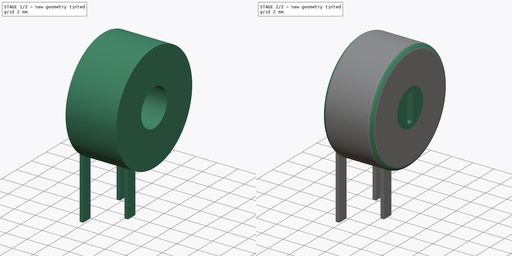
[diagram: build sequence overview — one tinted view per stage of 2, left to right]
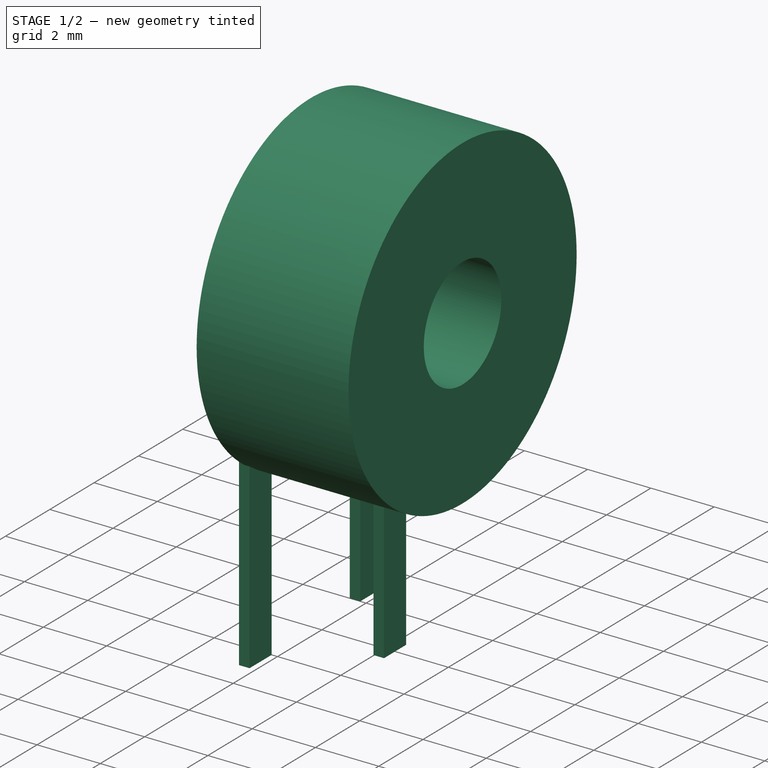
[diagram: stage 1 of 2 — iso view after this stage's code; geometry added in this stage tinted green]
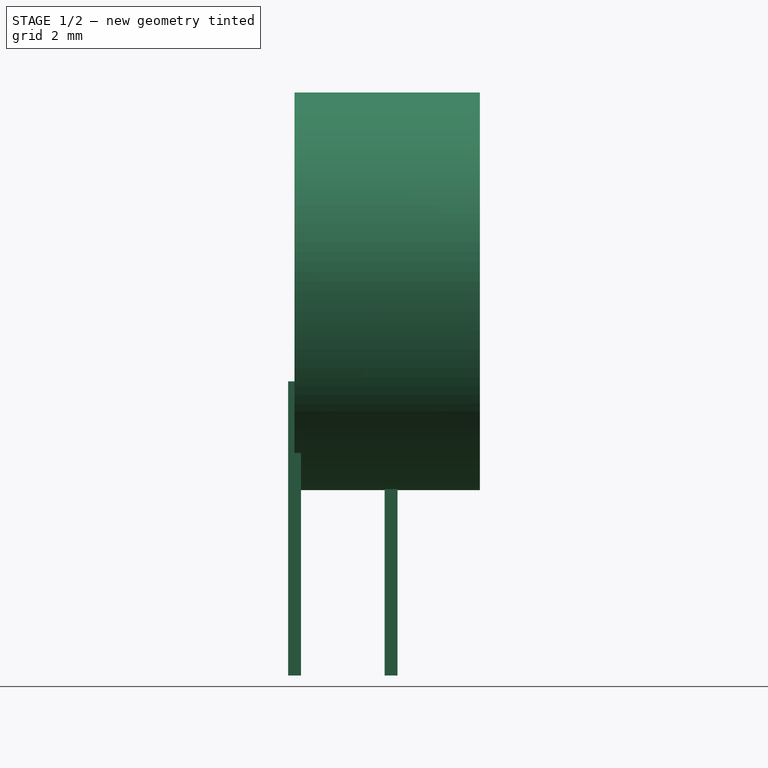
[diagram: stage 1 of 2 — front view after this stage's code; geometry added in this stage tinted green]
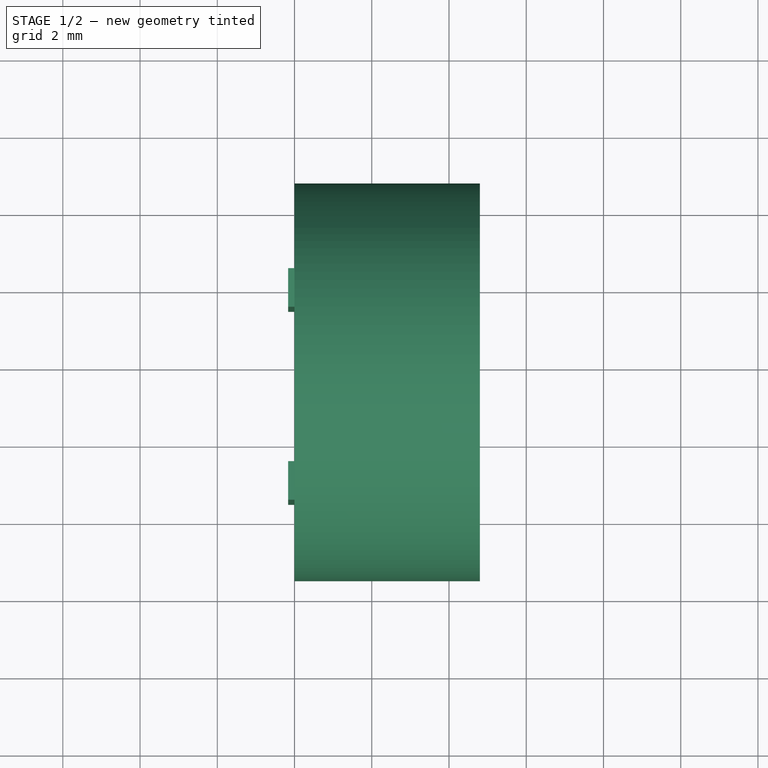
[diagram: stage 1 of 2 — top view after this stage's code; geometry added in this stage tinted green]
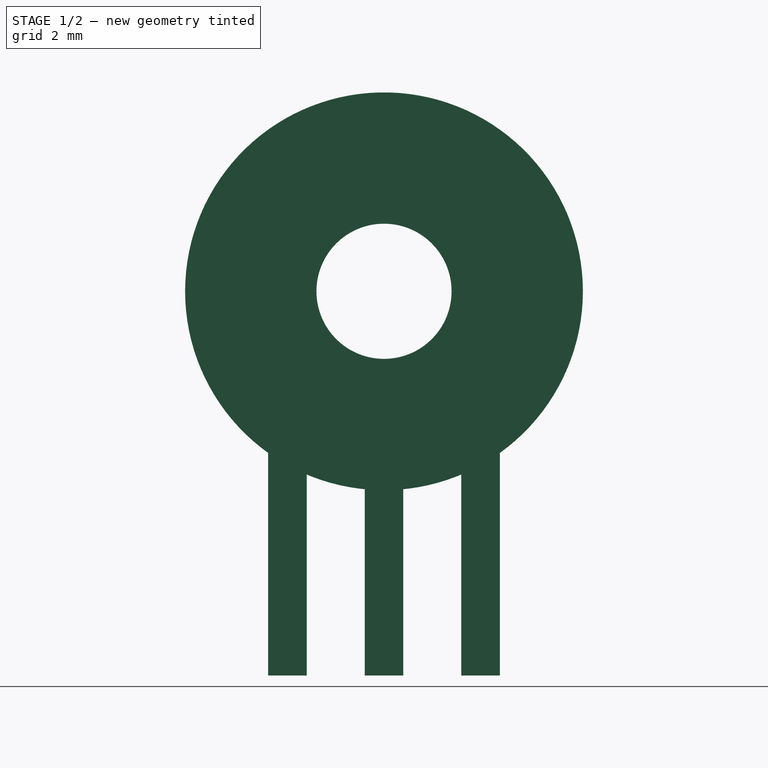
[diagram: stage 1 of 2 — right view after this stage's code; geometry added in this stage tinted green]
FCSTD DOCUMENT  (FreeCAD 0.16R6703 (Git))
Label: Potentiometer_Trimmer_Piher_PT-10h2.5_Vertical_Px2.5mm_Py5.0mm
License: All rights reserved
LicenseURL: http://en.wikipedia.org/wiki/All_rights_reserved
objects: Sketcher::SketchObject×3, PartDesign::Pad×3, Spreadsheet::Sheet×1, PartDesign::Fillet×1
note: 10 computed .brp shape members not serialized (recipe doc carries the construction recipe); baked Part::Feature solids carry a one-line shape summary decoded from their .brp

FEATURE [Spreadsheet::Sheet] Spreadsheet
  cells = A1=var lbody_fab = ; B1(lbody_fab)=0; A2=var tbody_fab = ; B2(tbody_fab)=-2.65; A3=var wbody_fab = ; B3(wbody_fab)=4.8; A4=var hbody_fab = ; B4(hbody_fab)=10.3; A5=var lscrew_fab = ; B5(lscrew_fab)=0; A6=var tscrew_fab = ; B6(tscrew_fab)=0.75; A7=var wscrew_fab = ; B7(wscrew_fab)=4.8; A8=var hscrew_fab = ; B8(hscrew_fab)=3.5; A9=var lshaft_fab = ; B9(lshaft_fab)=4.8; A10=var tshaft_fab = ; B10(tshaft_fab)=1; A11=var wshaft_fab = ; B11(wshaft_fab)=0; A12=var hshaft_fab = ; B12(hshaft_fab)=3; A13=var rmx = ; B13(rmx)=2.5; A14=var rmy = ; B14(rmy)=2.5; A15=var padx = ; B15(padx)=0; A16=var pady = ; B16(pady)=0; A17=var d_wire = ; B17(d_wire)=1; A18=var height = ; B18(height)=12.1; A19=var screwzpos = ; B19(screwzpos)=7; A20=var mh_rmx = ; B20(mh_rmx)=0; A21=var mh_rmy = ; B21(mh_rmy)=15; A22=var offsetx = ; B22(offsetx)=0; A23=var offsety = ; B23(offsety)=0
FEATURE [Sketcher::SketchObject] Sketch
  Placement = pos=(0,0,0) rot=(0.57735,0.57735,0.57735;2.0944rad)
  expr: Constraints[4] = Spreadsheet.hscrew_fab / 2
  expr: Placement.Base.x = Spreadsheet.lbody_fab
  expr: Constraints[2] = Spreadsheet.height - Spreadsheet.hbody_fab / 2
  expr: Constraints[1] = Spreadsheet.tbody_fab + Spreadsheet.hbody_fab / 2
  expr: Constraints[0] = Spreadsheet.hbody_fab / 2
  sketch-geometry (2):
    g0: Circle CenterX=-2.5 CenterY=6.95 CenterZ=0 NormalX=0 NormalY=0 NormalZ=1 Radius=5.15
    g1: Circle CenterX=-2.5 CenterY=6.95 CenterZ=0 NormalX=0 NormalY=0 NormalZ=1 Radius=1.75
  constraints (5):
    c: Radius(g0) = 5.15
    c: DistanceX(g0,g-1) = 2.5
    c: DistanceY(g-1,g0) = 6.95
    c: Coincident(g1,g0)
    c: Radius(g1) = 1.75
FEATURE [PartDesign::Pad] Pad
  Length = 4.8
  Length2 = 100
  Placement = pos=(0,0,0) rot=(0.57735,0.57735,0.57735;2.0944rad)
  Sketch = -> Sketch
  Type = 0
  expr: Length = abs(Spreadsheet.wbody_fab)
FEATURE [Sketcher::SketchObject] Sketch003
  expr: Constraints[23] = Spreadsheet.rmy
  expr: Constraints[22] = Spreadsheet.rmx
  expr: Constraints[35] = Spreadsheet.rmy * 2
  expr: Constraints[36] = Spreadsheet.rmy * 2
  expr: Constraints[24] = Spreadsheet.rmy
  expr: Constraints[8] = Spreadsheet.d_wire / 3
  expr: Constraints[11] = Spreadsheet.d_wire / 2
  expr: Constraints[21] = Spreadsheet.rmx + Spreadsheet.d_wire / 3
  expr: Constraints[10] = Spreadsheet.d_wire / 6
  expr: Constraints[9] = Spreadsheet.d_wire
  sketch-geometry (13):
    g0: LineSegment StartX=-0.166667 StartY=0.5 StartZ=0 EndX=0.166667 EndY=0.5 EndZ=0
    g1: LineSegment StartX=0.166667 StartY=0.5 StartZ=0 EndX=0.166667 EndY=-0.5 EndZ=0
    g2: LineSegment StartX=0.166667 StartY=-0.5 StartZ=0 EndX=-0.166667 EndY=-0.5 EndZ=0
    g3: LineSegment StartX=-0.166667 StartY=-0.5 StartZ=0 EndX=-0.166667 EndY=0.5 EndZ=0
    g4: GeomPoint [constr] X=0 Y=0 Z=0
    g5: LineSegment StartX=2.66667 StartY=-2 StartZ=0 EndX=2.33333 EndY=-2 EndZ=0
    g6: LineSegment StartX=2.33333 StartY=-2 StartZ=0 EndX=2.33333 EndY=-3 EndZ=0
    g7: LineSegment StartX=2.33333 StartY=-3 StartZ=0 EndX=2.66667 EndY=-3 EndZ=0
    g8: LineSegment StartX=2.66667 StartY=-3 StartZ=0 EndX=2.66667 EndY=-2 EndZ=0
    g9: LineSegment StartX=-0.166667 StartY=-4.5 StartZ=0 EndX=0.166667 EndY=-4.5 EndZ=0
    g10: LineSegment StartX=0.166667 StartY=-4.5 StartZ=0 EndX=0.166667 EndY=-5.5 EndZ=0
    g11: LineSegment StartX=0.166667 StartY=-5.5 StartZ=0 EndX=-0.166667 EndY=-5.5 EndZ=0
    g12: LineSegment StartX=-0.166667 StartY=-5.5 StartZ=0 EndX=-0.166667 EndY=-4.5 EndZ=0
  constraints (37):
    c: Coincident(g0,g1)
    c: Coincident(g1,g2)
    c: Coincident(g2,g3)
    c: Coincident(g3,g0)
    c: Horizontal(g0)
    c: Horizontal(g2)
    c: Vertical(g1)
    c: Vertical(g3)
    c: DistanceX(g0,g0) = 0.333333
    c: DistanceY(g3,g3) = 1
    c: DistanceX(g0,g4) = 0.166667
    c: DistanceY(g2,g4) = 0.5
    c: Coincident(g5,g6)
    c: Coincident(g6,g7)
    c: Coincident(g7,g8)
    c: Coincident(g8,g5)
    c: Horizontal(g5)
    c: Horizontal(g7)
    c: Vertical(g6)
    c: Vertical(g8)
    c: Coincident(g4,g-1)
    c: DistanceX(g2,g5) = 2.83333
    c: DistanceX(g2,g5) = 2.5
    c: DistanceY(g5,g0) = 2.5
    c: DistanceY(g7,g1) = 2.5
    c: Coincident(g9,g10)
    c: Coincident(g10,g11)
    c: Coincident(g11,g12)
    c: Coincident(g12,g9)
    c: Horizontal(g9)
    c: Horizontal(g11)
    c: Vertical(g10)
    c: Vertical(g12)
    c: DistanceX(g9,g2) = 0
    c: DistanceX(g1,g9) = 0
    c: DistanceY(g9,g0) = 5
    c: DistanceY(g11,g2) = 5
FEATURE [PartDesign::Pad] Pad002
  Length = 4.61667
  Length2 = 3
  Sketch = -> Sketch003
  Type = 4
  expr: Length = Spreadsheet.height - Spreadsheet.hbody_fab / 2 - Spreadsheet.hscrew_fab * 2 / 3
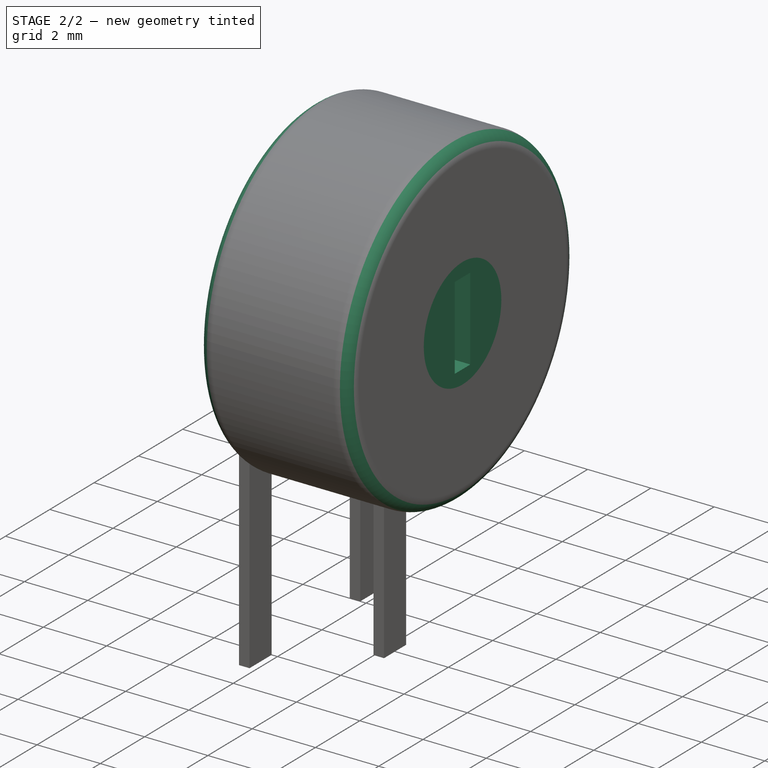
[diagram: stage 2 of 2 — iso view after this stage's code; geometry added in this stage tinted green]
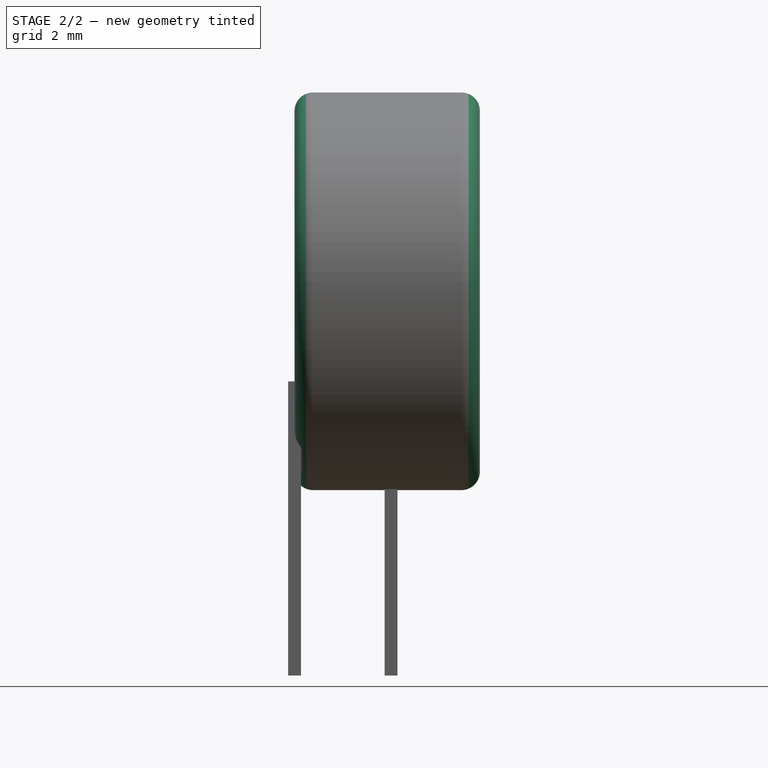
[diagram: stage 2 of 2 — front view after this stage's code; geometry added in this stage tinted green]
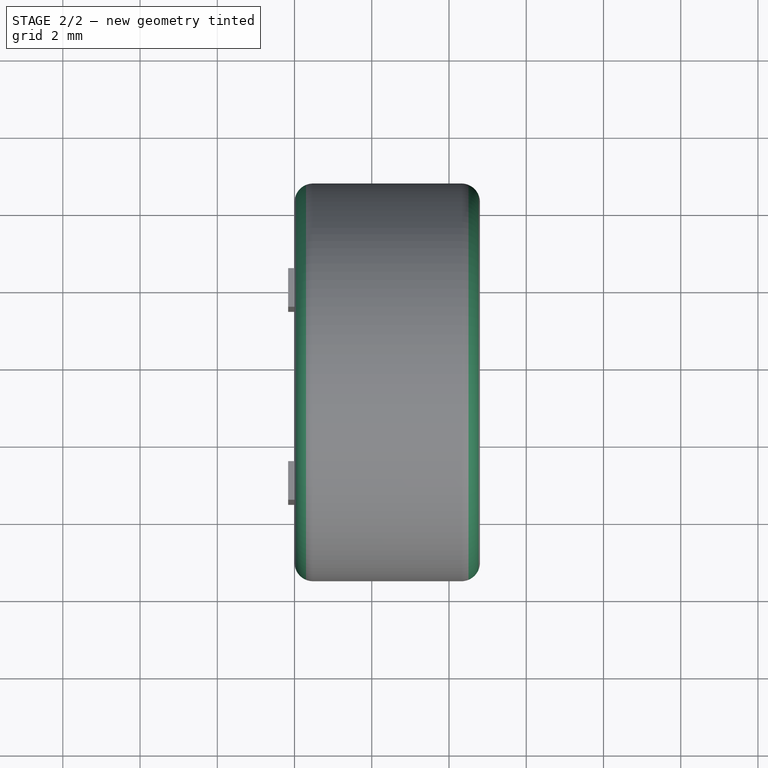
[diagram: stage 2 of 2 — top view after this stage's code; geometry added in this stage tinted green]
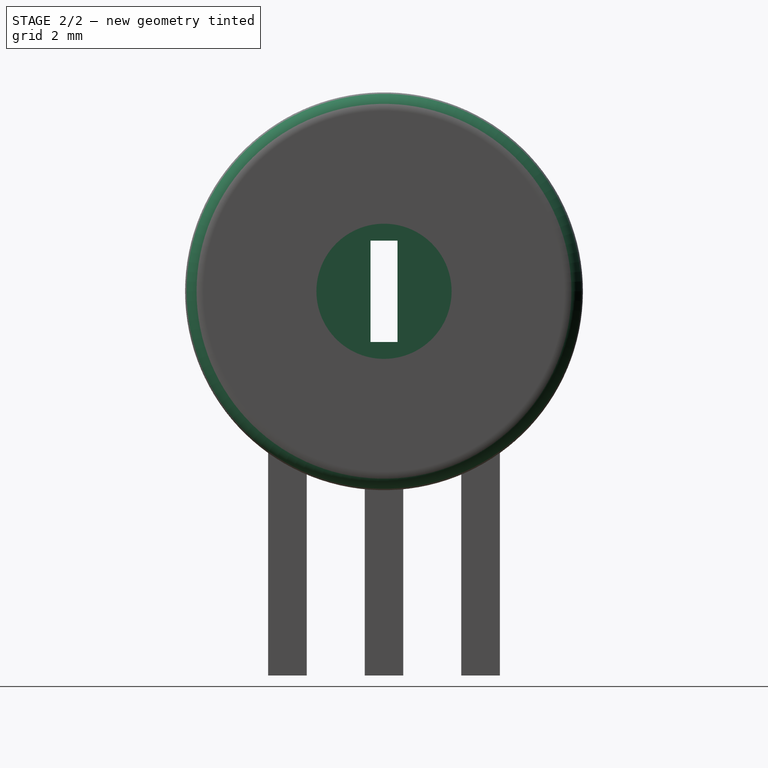
[diagram: stage 2 of 2 — right view after this stage's code; geometry added in this stage tinted green]
FEATURE [Sketcher::SketchObject] Sketch001
  Placement = pos=(0,0,0) rot=(0.57735,0.57735,0.57735;2.0944rad)
  expr: Constraints[13] = Spreadsheet.hscrew_fab * 0.2 / 2
  expr: Constraints[12] = Spreadsheet.hscrew_fab * 0.75
  expr: Constraints[11] = Spreadsheet.hscrew_fab * 0.2
  expr: Constraints[0] = Spreadsheet.hscrew_fab / 2
  expr: Constraints[14] = Spreadsheet.hscrew_fab * 0.75 / 2
  expr: Constraints[2] = Spreadsheet.tbody_fab + Spreadsheet.hbody_fab / 2
  expr: Placement.Base.x = Spreadsheet.lbody_fab
  expr: Constraints[1] = Spreadsheet.height - Spreadsheet.hbody_fab / 2
  sketch-geometry (5):
    g0: Circle CenterX=-2.5 CenterY=6.95 CenterZ=0 NormalX=0 NormalY=0 NormalZ=1 Radius=1.75
    g1: LineSegment StartX=-2.85 StartY=8.2625 StartZ=0 EndX=-2.15 EndY=8.2625 EndZ=0
    g2: LineSegment StartX=-2.15 StartY=8.2625 StartZ=0 EndX=-2.15 EndY=5.6375 EndZ=0
    g3: LineSegment StartX=-2.15 StartY=5.6375 StartZ=0 EndX=-2.85 EndY=5.6375 EndZ=0
    g4: LineSegment StartX=-2.85 StartY=5.6375 StartZ=0 EndX=-2.85 EndY=8.2625 EndZ=0
  constraints (15):
    c: Radius(g0) = 1.75
    c: DistanceY(g-1,g0) = 6.95
    c: DistanceX(g0,g-1) = 2.5
    c: Coincident(g1,g2)
    c: Coincident(g2,g3)
    c: Coincident(g3,g4)
    c: Coincident(g4,g1)
    c: Horizontal(g1)
    c: Horizontal(g3)
    c: Vertical(g2)
    c: Vertical(g4)
    c: DistanceX(g1,g1) = 0.7
    c: DistanceY(g2,g2) = 2.625
    c: DistanceX(g3,g0) = 0.35
    c: DistanceY(g3,g0) = 1.3125
FEATURE [PartDesign::Pad] Pad001
  Length = 4.8
  Length2 = 100
  Placement = pos=(0,0,0) rot=(0.57735,0.57735,0.57735;2.0944rad)
  Sketch = -> Sketch001
  Type = 0
  expr: Length = abs(Spreadsheet.wbody_fab)
FEATURE [PartDesign::Fillet] Fillet
  Base = -> Pad [Edge2,Edge3]
  Placement = pos=(0,0,0) rot=(0.57735,0.57735,0.57735;2.0944rad)
  Radius = 0.48
  expr: Radius = abs(Spreadsheet.wbody_fab) / 10
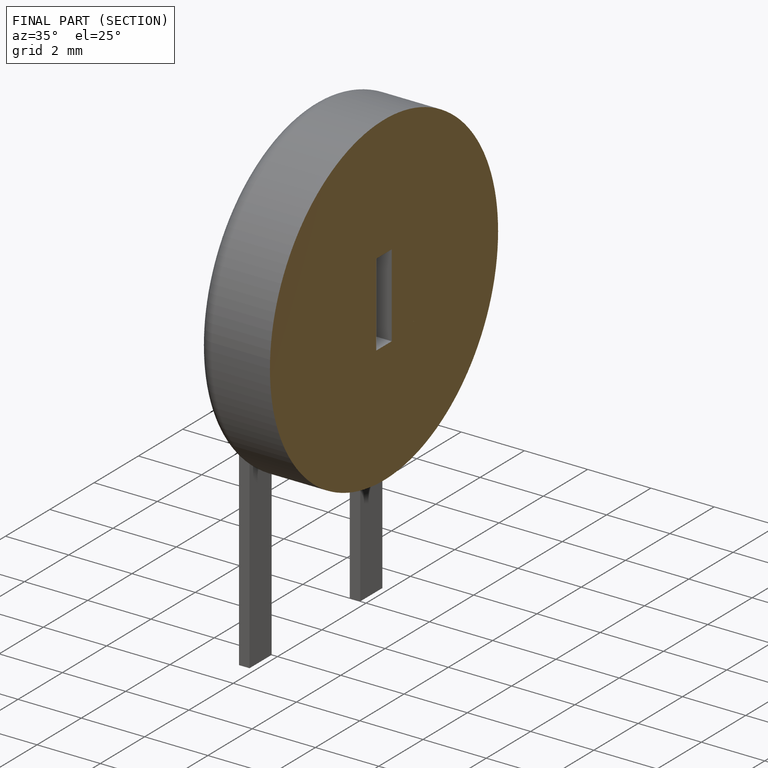
[diagram: finished part — half-section view (interior)]
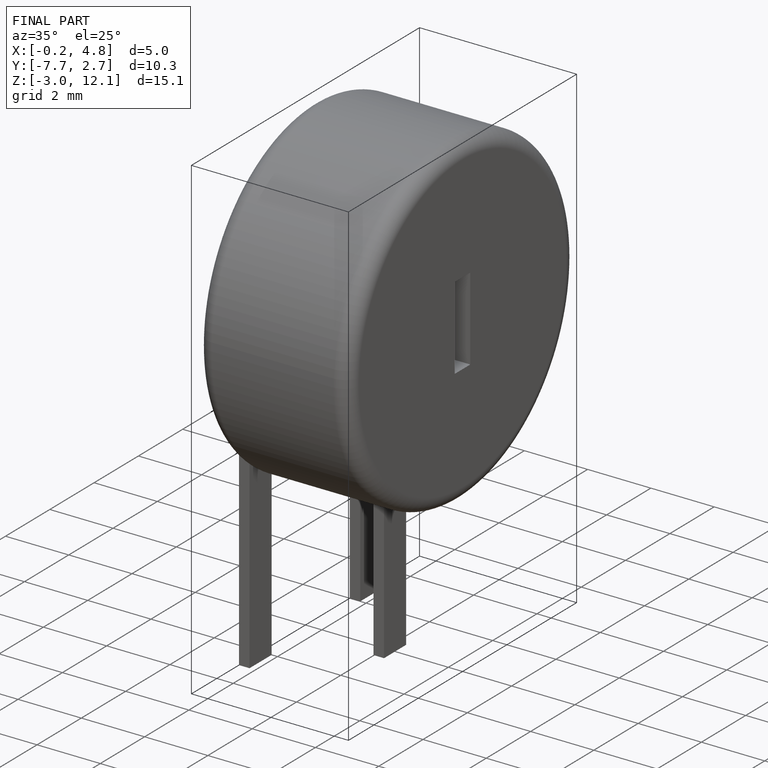
[diagram: finished part — iso view with bounding-box wireframe]
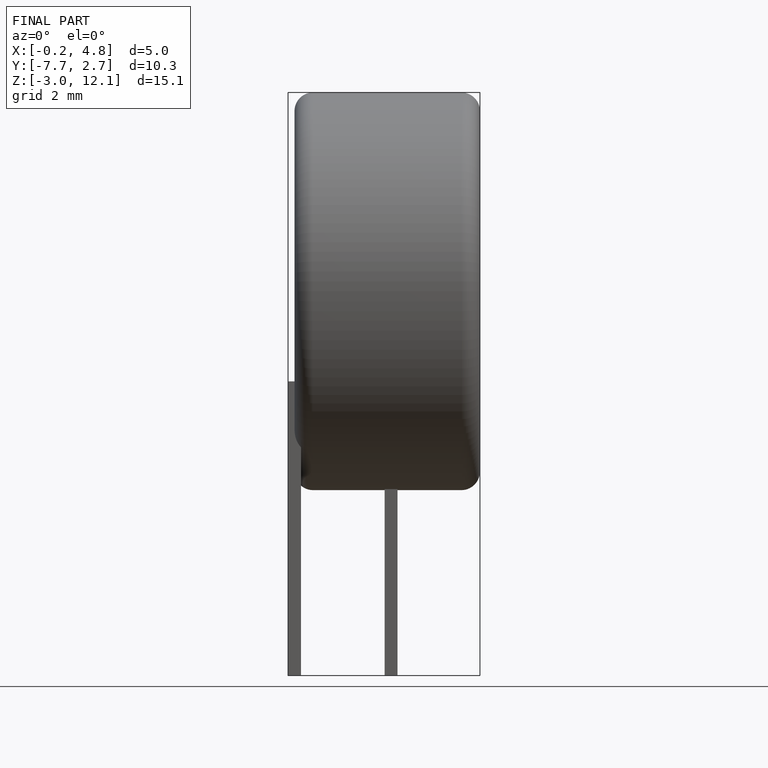
[diagram: finished part — front view with bounding-box wireframe]
